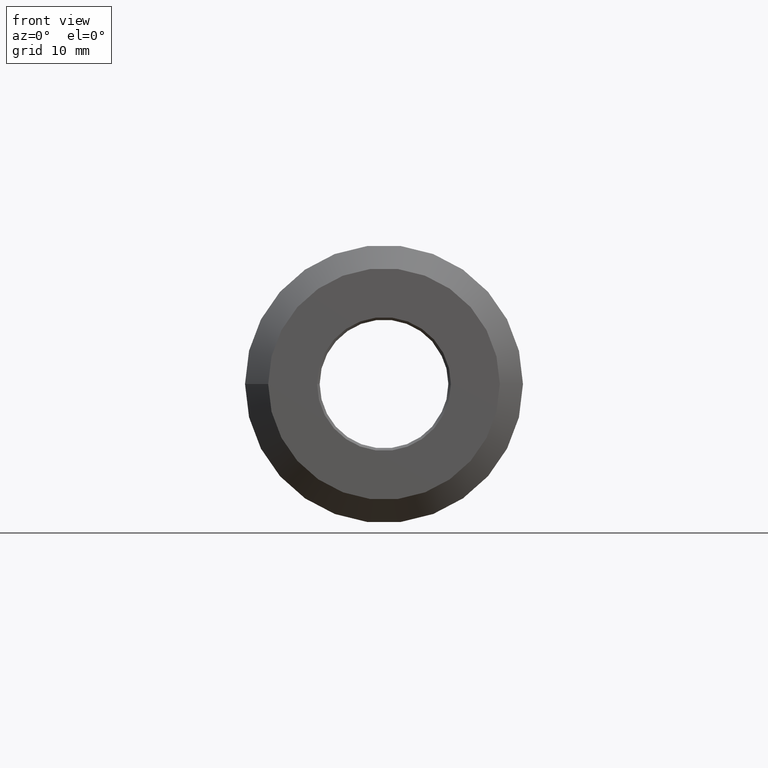
[diagram: clean part render]
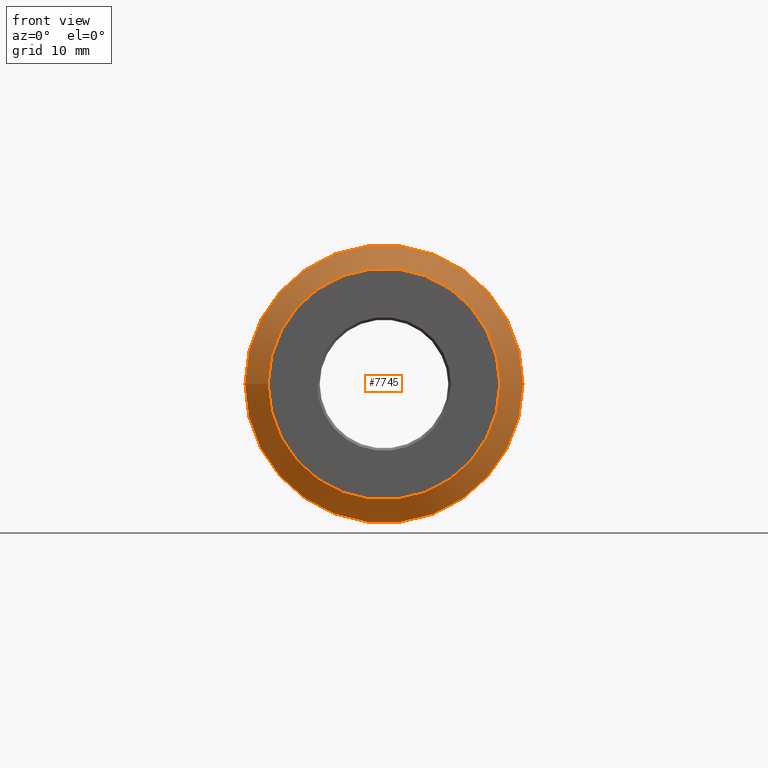
[diagram: same view with one face highlighted and labeled with its STEP entity id]
A machine part, front view. The second image highlights one B-rep face of the part: STEP entity #7745.
In plain terms, the highlighted conical surface has half-angle 45 deg.
Its self-contained STEP definition (entity closure, byte-faithful):
#58 = CARTESIAN_POINT ( 'NONE',  ( -11.24999999999998757, -30.00000000000000355, 0.000000000000000000 ) ) ;
#597 = DIRECTION ( 'NONE',  ( -1.000000000000000000, -3.083952846180991267E-16, 0.000000000000000000 ) ) ;
#712 = FACE_OUTER_BOUND ( 'NONE', #7952, .T. ) ;
#955 = VERTEX_POINT ( 'NONE', #58 ) ;
#1944 = CARTESIAN_POINT ( 'NONE',  ( -13.49999999999998757, -27.75000000000002132, 0.000000000000000000 ) ) ;
#2575 = DIRECTION ( 'NONE',  ( -3.061616997868382648E-16, 1.000000000000000000, -0.000000000000000000 ) ) ;
#2791 = AXIS2_PLACEMENT_3D ( 'NONE', #7291, #2575, #6372 ) ;
#3214 = DIRECTION ( 'NONE',  ( -1.000000000000000000, -2.569960705150825891E-16, 0.000000000000000000 ) ) ;
#3885 = EDGE_CURVE ( 'NONE', #955, #955, #5486, .T. ) ;
#3897 = VERTEX_POINT ( 'NONE', #1944 ) ;
#4113 = CARTESIAN_POINT ( 'NONE',  ( 8.504715738136713553E-15, -27.75000000000001776, 0.000000000000000000 ) ) ;
#4663 = ORIENTED_EDGE ( 'NONE', *, *, #9461, .F. ) ;
#5486 = CIRCLE ( 'NONE', #10269, 11.24999999999999645 ) ;
#6050 = CONICAL_SURFACE ( 'NONE', #12083, 13.49999999999999645, 0.7853981633974521648 ) ;
#6341 = DIRECTION ( 'NONE',  ( -3.061616997868382648E-16, 1.000000000000000000, -0.000000000000000000 ) ) ;
#6372 = DIRECTION ( 'NONE',  ( -1.000000000000000000, -2.569960705150825891E-16, 0.000000000000000000 ) ) ;
#6616 = CIRCLE ( 'NONE', #2791, 13.49999999999999645 ) ;
#7291 = CARTESIAN_POINT ( 'NONE',  ( 8.504715738136713553E-15, -27.75000000000001776, 0.000000000000000000 ) ) ;
#7745 = ADVANCED_FACE ( 'NONE', ( #11061, #712 ), #6050, .T. ) ;
#7952 = EDGE_LOOP ( 'NONE', ( #4663 ) ) ;
#8200 = CARTESIAN_POINT ( 'NONE',  ( 9.193579562657094028E-15, -30.00000000000000000, 0.000000000000000000 ) ) ;
#8614 = ORIENTED_EDGE ( 'NONE', *, *, #3885, .T. ) ;
#8869 = DIRECTION ( 'NONE',  ( -3.061616997868382648E-16, 1.000000000000000000, -0.000000000000000000 ) ) ;
#9461 = EDGE_CURVE ( 'NONE', #3897, #3897, #6616, .T. ) ;
#10269 = AXIS2_PLACEMENT_3D ( 'NONE', #8200, #6341, #597 ) ;
#10846 = EDGE_LOOP ( 'NONE', ( #8614 ) ) ;
#11061 = FACE_BOUND ( 'NONE', #10846, .T. ) ;
#12083 = AXIS2_PLACEMENT_3D ( 'NONE', #4113, #8869, #3214 ) ;